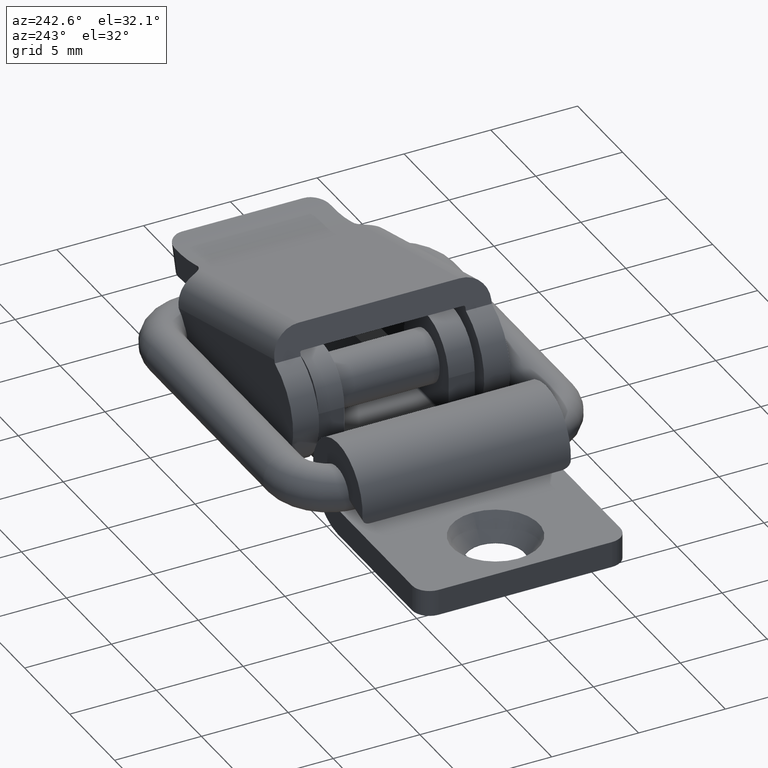
[diagram: clean part render]
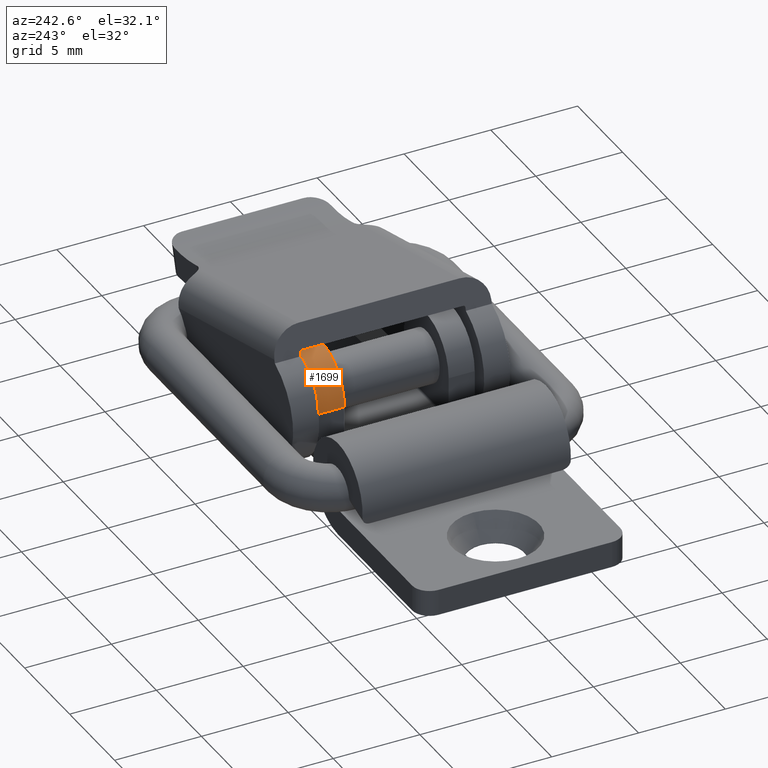
[diagram: same view with one face highlighted and labeled with its STEP entity id]
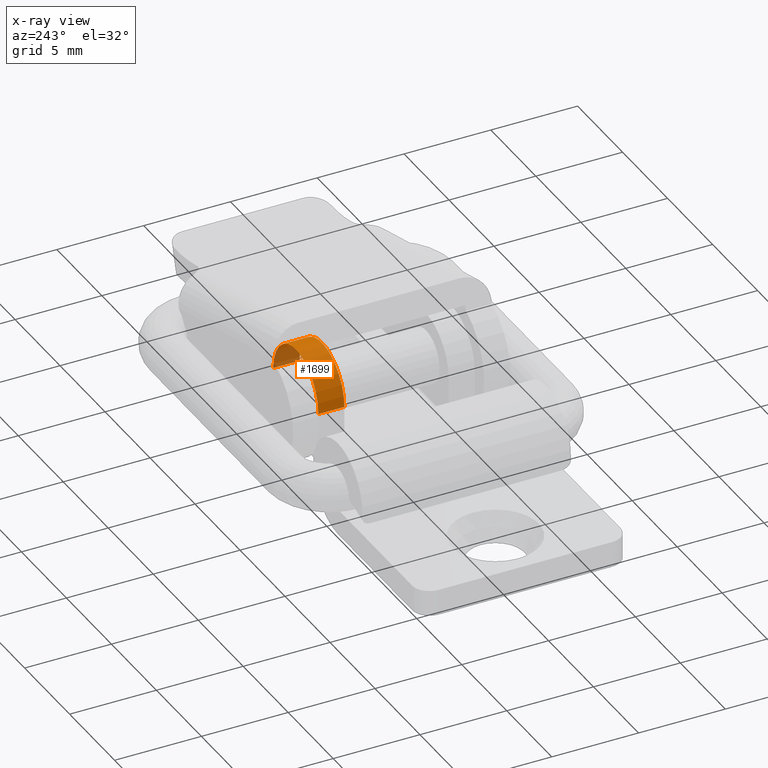
[diagram: x-ray of the same camera — body ghosted, the highlighted face saturated]
A machine part, auxiliary view. The second image highlights one B-rep face of the part: STEP entity #1699.
The next image is the same camera in x-ray: the body ghosted, the highlighted face saturated — about 15% of this face is hidden behind the body in this view.
In plain terms, the highlighted cylindrical surface (partial cylindrical patch) has radius 2.5 mm, axis along (-0, 1, -0).
Its self-contained STEP definition (entity closure, byte-faithful):
#179=LINE('',#3035,#303);
#182=LINE('',#3040,#306);
#303=VECTOR('',#2415,1.5);
#306=VECTOR('',#2420,1.5);
#353=CYLINDRICAL_SURFACE('',#1903,2.5);
#534=FACE_OUTER_BOUND('',#666,.T.);
#666=EDGE_LOOP('',(#1586,#1587,#1588,#1589));
#754=CIRCLE('',#1895,2.5);
#756=CIRCLE('',#1900,2.5);
#903=VERTEX_POINT('',#3026);
#904=VERTEX_POINT('',#3028);
#906=VERTEX_POINT('',#3034);
#907=VERTEX_POINT('',#3038);
#1127=EDGE_CURVE('',#904,#903,#754,.T.);
#1130=EDGE_CURVE('',#904,#906,#179,.T.);
#1133=EDGE_CURVE('',#903,#907,#182,.T.);
#1134=EDGE_CURVE('',#907,#906,#756,.T.);
#1586=ORIENTED_EDGE('',*,*,#1134,.T.);
#1587=ORIENTED_EDGE('',*,*,#1130,.F.);
#1588=ORIENTED_EDGE('',*,*,#1127,.T.);
#1589=ORIENTED_EDGE('',*,*,#1133,.T.);
#1699=ADVANCED_FACE('',(#534),#353,.T.);
#1895=AXIS2_PLACEMENT_3D('',#3029,#2408,#2409);
#1900=AXIS2_PLACEMENT_3D('',#3042,#2423,#2424);
#1903=AXIS2_PLACEMENT_3D('',#3046,#2429,#2430);
#2408=DIRECTION('center_axis',(0.,-1.,2.22044604925031E-16));
#2409=DIRECTION('ref_axis',(-1.,0.,0.));
#2415=DIRECTION('',(0.,-1.,2.22044604925031E-16));
#2420=DIRECTION('',(0.,-1.,2.22044604925031E-16));
#2423=DIRECTION('center_axis',(0.,1.,-2.22044604925031E-16));
#2424=DIRECTION('ref_axis',(-1.,0.,0.));
#2429=DIRECTION('center_axis',(0.,-1.,2.22044604925031E-16));
#2430=DIRECTION('ref_axis',(-1.,0.,0.));
#3026=CARTESIAN_POINT('',(-1.25,-3.00309739581795,-2.50309739581794));
#3028=CARTESIAN_POINT('',(-6.25,-3.00309739581795,-2.50309739581794));
#3029=CARTESIAN_POINT('Origin',(-3.75,-3.00309739581795,-2.50309739581794));
#3034=CARTESIAN_POINT('',(-6.25,-4.50309739581795,-2.50309739581794));
#3035=CARTESIAN_POINT('',(-6.25,-3.00309739581795,-2.50309739581794));
#3038=CARTESIAN_POINT('',(-1.25,-4.50309739581795,-2.50309739581794));
#3040=CARTESIAN_POINT('',(-1.25,-3.00309739581795,-2.50309739581794));
#3042=CARTESIAN_POINT('Origin',(-3.75,-4.50309739581795,-2.50309739581794));
#3046=CARTESIAN_POINT('Origin',(-3.75,-3.00309739581795,-2.50309739581794));